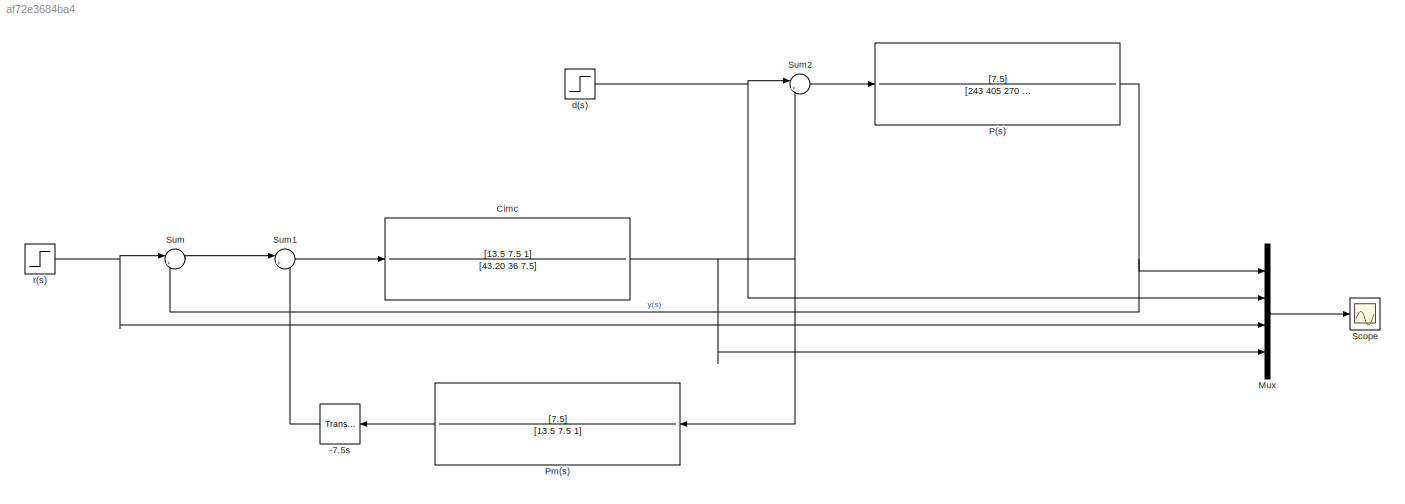
MODEL slx_af72e3684ba4
KIND model
CONFIG AbsTol = auto
CONFIG EnableMultiTasking = off
CONFIG FixedStep = 1e-3
CONFIG MaxStep = auto
CONFIG MinStep = auto
CONFIG RelTol = 1e-3
CONFIG SampleTimeConstraint = Unconstrained
CONFIG SolverName = FixedStepAuto
CONFIG StartTime = 0.0
CONFIG StopTime = 200
BLOCK [TransportDelay] -7.5s
  DelayTime = 7.5
  Ports = [1, 1]
BLOCK [TransferFcn] Cimc
  Denominator = [43.20 36 7.5]
  NameLocation = top
  Numerator = [13.5 7.5 1]
BLOCK [Mux] Mux
  DisplayOption = bar
  Ports = [4, 1]
BLOCK [TransferFcn] P(s)
  Denominator = [243 405 270 90 15 1]
  Numerator = [7.5]
BLOCK [TransferFcn] Pm(s)
  Denominator = [13.5 7.5 1]
  Numerator = [7.5]
BLOCK [Scope] Scope
  Floating = off
  NumInputPorts = 1
  Ports = [1]
  ScopeSpecificationString = Simulink.scopes.TimeScopeBlockCfg('CurrentConfiguration', extmgr.ConfigurationSet(extmgr.Configuration('Core','General UI',true),extmgr.Configuration('Core','Source UI',true),extmgr.Configuration('Sources','WiredSimulink',true),extmgr.Configuration('Visuals','Time Domain',true,'SerializedDisplays',{struct('MinYLimReal','-5.40946','MaxYLimReal','17.26772','YLabelReal','','MinYLimMag','0.00000','Max...<+1437ch>
BLOCK [Sum] Sum
  Inputs = |+-
  Ports = [2, 1]
BLOCK [Sum] Sum1
  Inputs = |++
  Ports = [2, 1]
BLOCK [Sum] Sum2
  Inputs = |++
  NameLocation = top
  Ports = [2, 1]
BLOCK [Step] d(s)
  After = 5
  SampleTime = 0
  Time = 80
BLOCK [Step] r(s)
  After = 15
  SampleTime = 0
  Time = 5
LINE -7.5s:1 -> Sum1:2
NET Cimc:1 -> Mux:4, Pm(s):1, Sum2:2
LINE Mux:1 -> Scope:1
NET P(s):1 -> Mux:1, Sum:2
LINE Pm(s):1 -> -7.5s:1
LINE Sum1:1 -> Cimc:1
LINE Sum2:1 -> P(s):1
LINE Sum:1 -> Sum1:1
NET d(s):1 -> Mux:2, Sum2:1
NET r(s):1 -> Mux:3, Sum:1
note: NET lines group one-source signal fan-out (src -> all destinations, sorted); 1:1 wires keep LINE
